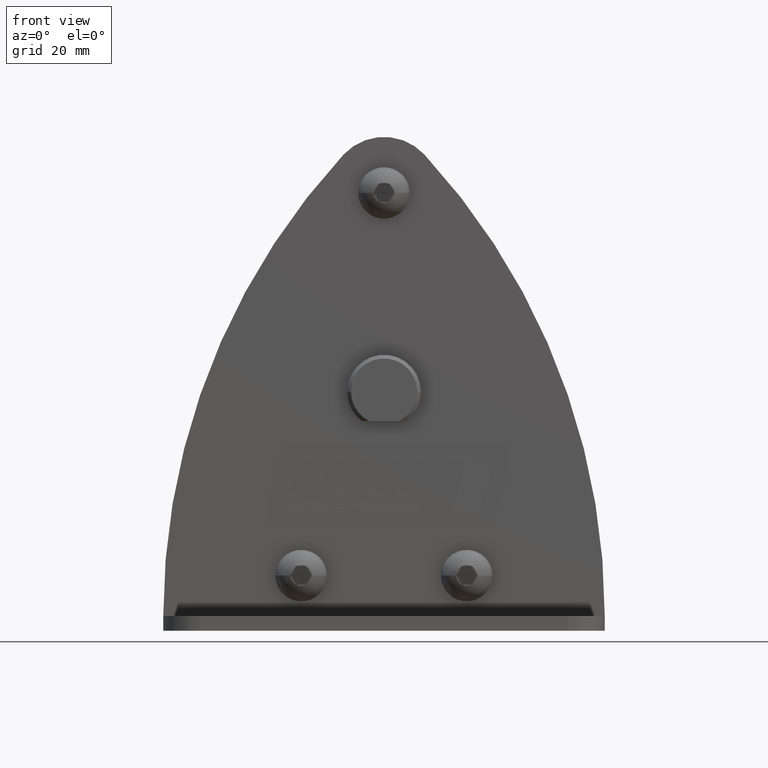
[diagram: clean part render]
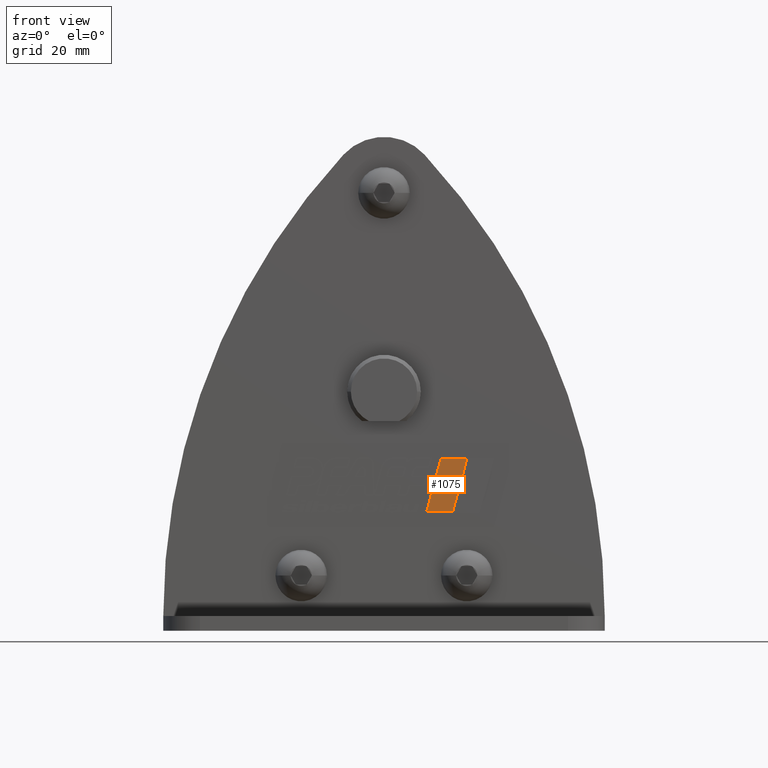
[diagram: same view with one face highlighted and labeled with its STEP entity id]
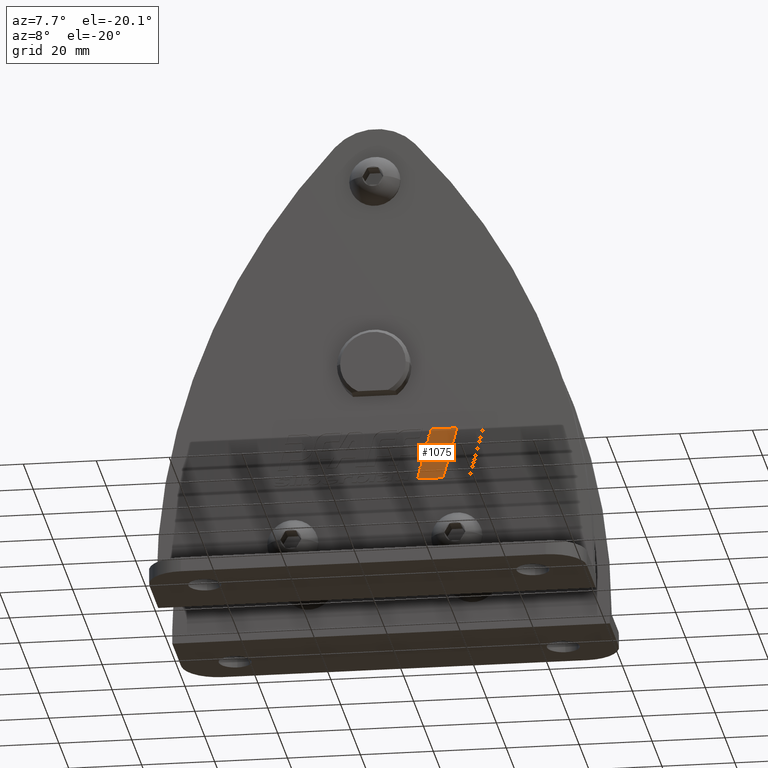
[diagram: same view with one face highlighted and labeled with its STEP entity id]
A machine part, front view. The second image highlights one B-rep face of the part: STEP entity #1075.
A second angle (auxiliary view) of the same face is appended — the face is thin or edge-on in the first view.
In plain terms, the highlighted planar face has unit normal (0, -1, 0).
Its self-contained STEP definition (entity closure, byte-faithful):
#1075=ADVANCED_FACE('',(#2632),#2633,.T.);
#2632=FACE_OUTER_BOUND('',#4702,.T.);
#2633=PLANE('',#4703);
#4702=EDGE_LOOP('',(#8179,#8180,#8181,#8182));
#4703=AXIS2_PLACEMENT_3D('',#8183,#8184,#8185);
#8179=ORIENTED_EDGE('',*,*,#13010,.T.);
#8180=ORIENTED_EDGE('',*,*,#13022,.T.);
#8181=ORIENTED_EDGE('',*,*,#13018,.T.);
#8182=ORIENTED_EDGE('',*,*,#13014,.T.);
#8183=CARTESIAN_POINT('',(-8.50567618687546E-013,-18.25,-12.6317308560556));
#8184=DIRECTION('',(0.0,-1.0,0.0));
#8185=DIRECTION('',(1.0,0.0,0.0));
#13010=EDGE_CURVE('',#15911,#15909,#15912,.T.);
#13014=EDGE_CURVE('',#15917,#15911,#15918,.T.);
#13018=EDGE_CURVE('',#15923,#15917,#15924,.T.);
#13022=EDGE_CURVE('',#15909,#15923,#15928,.T.);
#15909=VERTEX_POINT('',#22266);
#15911=VERTEX_POINT('',#22269);
#15912=LINE('',#22270,#22271);
#15917=VERTEX_POINT('',#22278);
#15918=LINE('',#22279,#22280);
#15923=VERTEX_POINT('',#22287);
#15924=LINE('',#22288,#22289);
#15928=LINE('',#22295,#22296);
#22266=CARTESIAN_POINT('',(22.5056716782817,-18.25,-18.3605842546975));
#22269=CARTESIAN_POINT('',(18.6765662693899,-18.25,-32.651));
#22270=CARTESIAN_POINT('',(22.4679812738393,-18.25,-18.5012467571816));
#22271=VECTOR('',#27384,1.0);
#22278=CARTESIAN_POINT('',(11.620929656672,-18.25,-32.651));
#22279=CARTESIAN_POINT('',(9.33828313469453,-18.25,-32.651));
#22280=VECTOR('',#27387,1.0);
#22287=CARTESIAN_POINT('',(15.4500350655638,-18.25,-18.3605842546974));
#22288=CARTESIAN_POINT('',(13.7341109790418,-18.25,-24.7645000431832));
#22289=VECTOR('',#27390,1.0);
#22295=CARTESIAN_POINT('',(7.72501753278148,-18.25,-18.3605842546974));
#22296=VECTOR('',#27393,1.0);
#27384=DIRECTION('',(0.258819048283064,0.0,0.965925825436844));
#27387=DIRECTION('',(1.0,0.0,0.0));
#27390=DIRECTION('',(-0.258819048283062,-0.0,-0.965925825436845));
#27393=DIRECTION('',(-1.0,0.0,0.0));